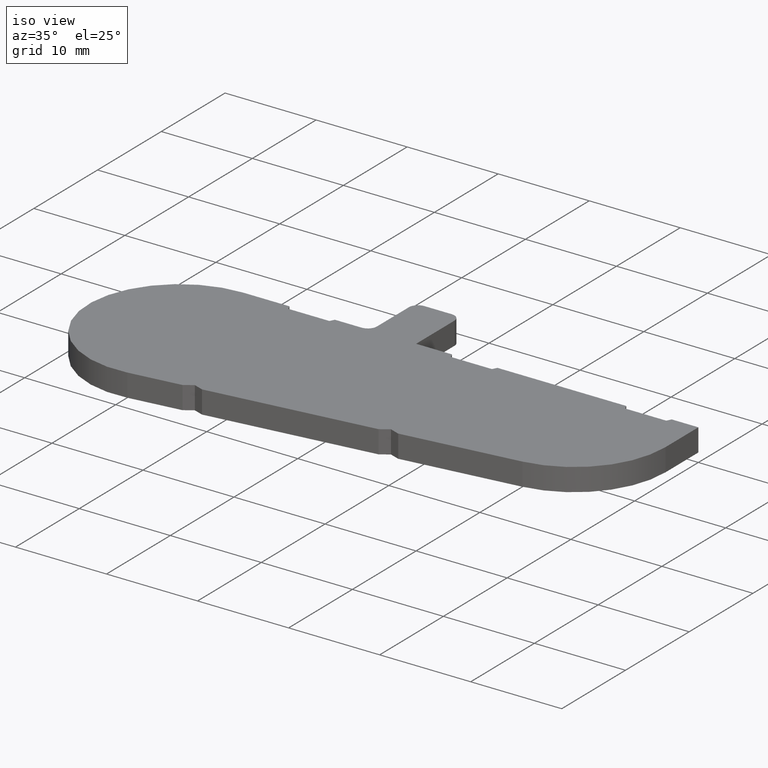
[diagram: clean part render]
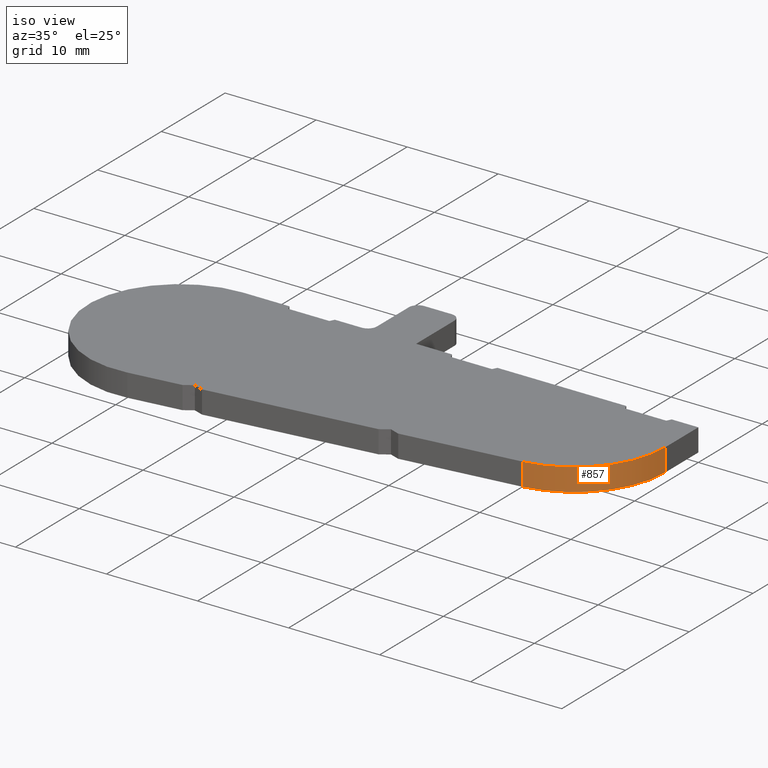
[diagram: same view with one face highlighted and labeled with its STEP entity id]
A machine part, iso view. The second image highlights one B-rep face of the part: STEP entity #857.
In plain terms, the highlighted cylindrical surface (partial cylindrical patch) has radius 10 mm, axis along (0, 0, 1).
Its self-contained STEP definition (entity closure, byte-faithful):
#799=CARTESIAN_POINT('',(41.207414041973578,-5.061588650451199,0.0));
#800=VERTEX_POINT('',#799);
#807=CARTESIAN_POINT('',(41.207414041973578,-5.061588650451199,2.500000000000000));
#808=VERTEX_POINT('',#807);
#809=CARTESIAN_POINT('',(41.207414041973578,-5.061588650451199,0.0));
#810=DIRECTION('',(0.0,0.0,1.0));
#811=VECTOR('',#810,2.500000000000000);
#812=LINE('',#809,#811);
#813=EDGE_CURVE('',#800,#808,#812,.T.);
#825=CARTESIAN_POINT('',(39.999999772310467,4.865251268748352,0.0));
#826=DIRECTION('',(0.0,0.0,1.0));
#827=DIRECTION('',(0.120741426966311,-0.992683991919956,0.0));
#828=AXIS2_PLACEMENT_3D('',#825,#826,#827);
#829=CYLINDRICAL_SURFACE('',#828,9.999999999999993);
#830=CARTESIAN_POINT('',(49.999999772310446,4.865251736693210,0.0));
#831=VERTEX_POINT('',#830);
#832=CARTESIAN_POINT('',(39.999999772310467,4.865251268748353,0.0));
#833=DIRECTION('',(0.0,0.0,1.000000000000000));
#834=DIRECTION('',(0.120741426966311,-0.992683991919956,0.0));
#835=AXIS2_PLACEMENT_3D('',#832,#833,#834);
#836=CIRCLE('',#835,9.999999999999993);
#837=EDGE_CURVE('',#800,#831,#836,.T.);
#838=ORIENTED_EDGE('',*,*,#837,.T.);
#839=CARTESIAN_POINT('',(49.999999772310446,4.865251736693210,2.500000000000000));
#840=VERTEX_POINT('',#839);
#841=CARTESIAN_POINT('',(49.999999772310446,4.865251736693210,0.0));
#842=DIRECTION('',(0.0,0.0,1.0));
#843=VECTOR('',#842,2.500000000000000);
#844=LINE('',#841,#843);
#845=EDGE_CURVE('',#831,#840,#844,.T.);
#846=ORIENTED_EDGE('',*,*,#845,.T.);
#847=CARTESIAN_POINT('',(39.999999772310467,4.865251268748353,2.500000000000001));
#848=DIRECTION('',(0.0,0.0,1.000000000000000));
#849=DIRECTION('',(0.120741426966311,-0.992683991919956,0.0));
#850=AXIS2_PLACEMENT_3D('',#847,#848,#849);
#851=CIRCLE('',#850,9.999999999999993);
#852=EDGE_CURVE('',#808,#840,#851,.T.);
#853=ORIENTED_EDGE('',*,*,#852,.F.);
#854=ORIENTED_EDGE('',*,*,#813,.F.);
#855=EDGE_LOOP('',(#838,#846,#853,#854));
#856=FACE_OUTER_BOUND('',#855,.T.);
#857=ADVANCED_FACE('',(#856),#829,.T.);